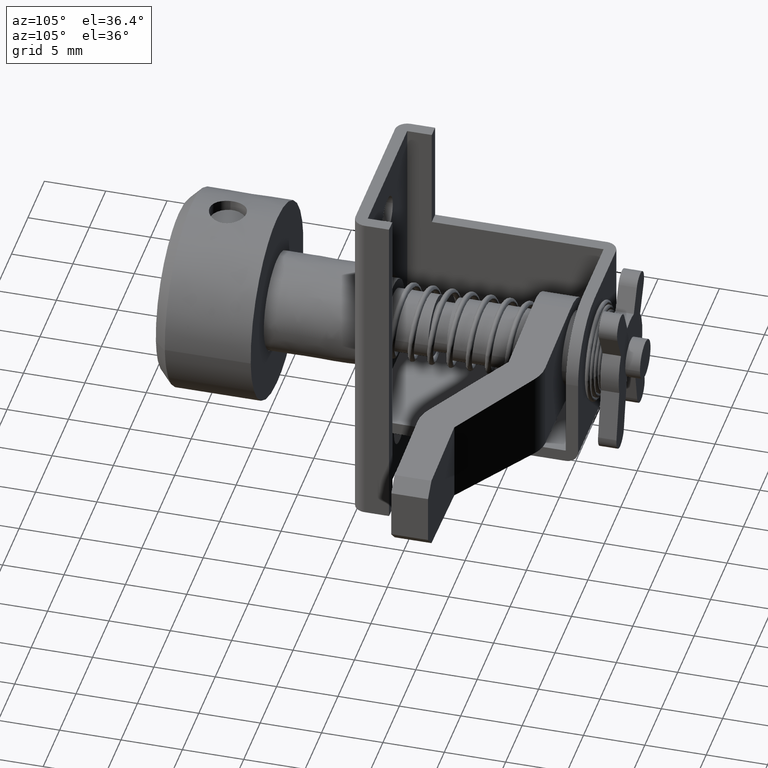
[diagram: clean part render]
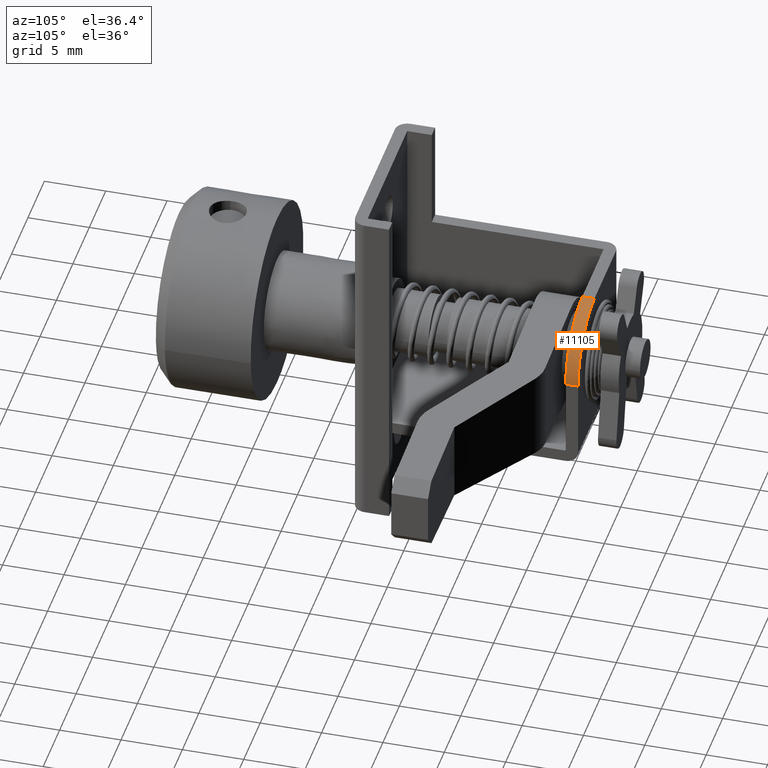
[diagram: same view with one face highlighted and labeled with its STEP entity id]
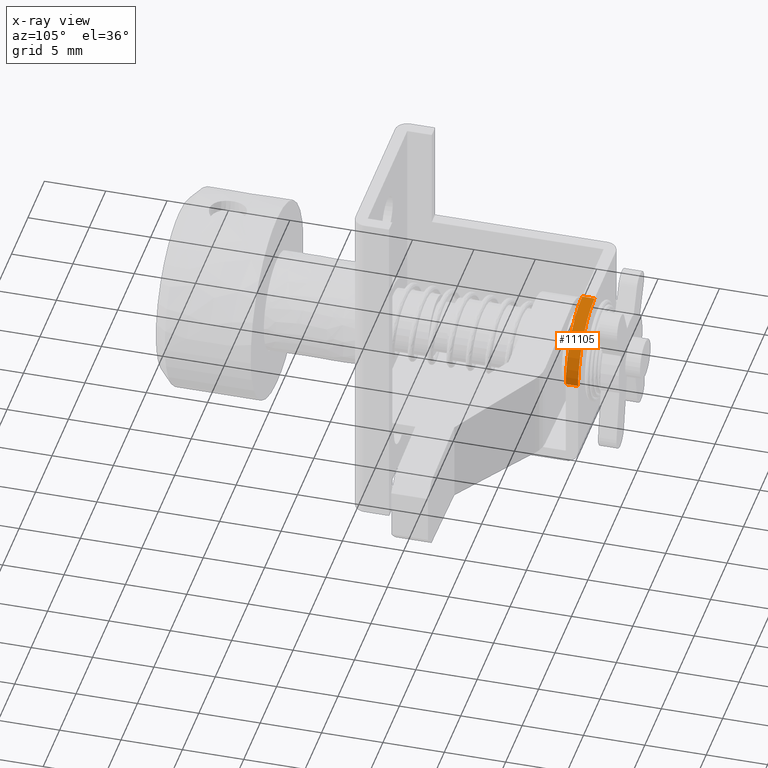
[diagram: x-ray of the same camera — body ghosted, the highlighted face saturated]
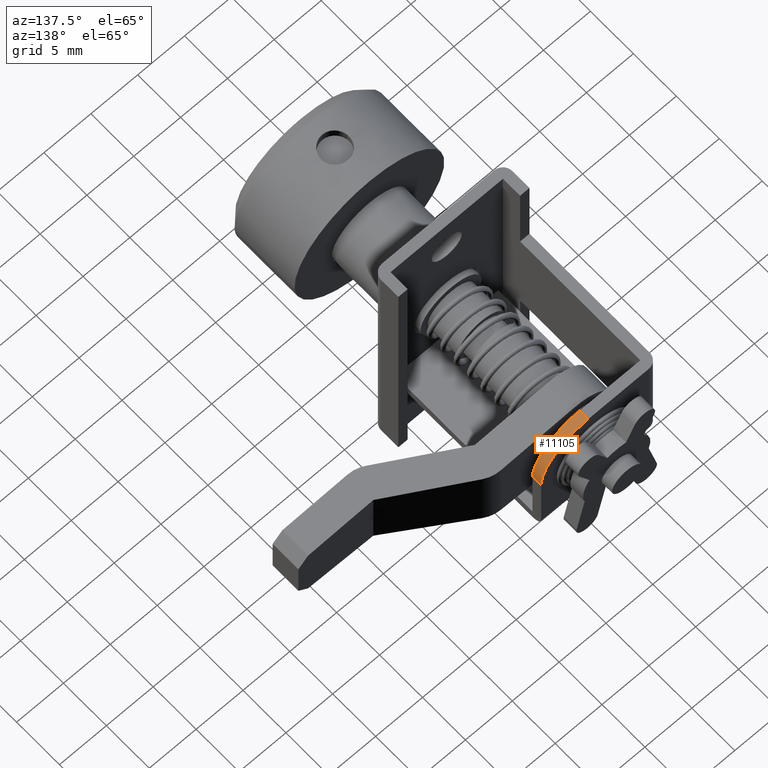
[diagram: same view with one face highlighted and labeled with its STEP entity id]
A machine part, auxiliary view. The second image highlights one B-rep face of the part: STEP entity #11105.
The next image is the same camera in x-ray: the body ghosted, the highlighted face saturated — about 0% of this face is hidden behind the body in this view.
A second angle (auxiliary view) of the same face is appended — the face is thin or edge-on in the first view.
In plain terms, the highlighted face is a freeform B-spline surface patch.
Its self-contained STEP definition (entity closure, byte-faithful):
#11045=CARTESIAN_POINT('',(16.975000000000001,-5.498286624877784,0.369115258460633));
#11046=CARTESIAN_POINT('',(18.025625000000009,-5.498286624877784,0.369115258460633));
#11047=CARTESIAN_POINT('',(16.974999999999998,-5.642461300831309,5.874924002773597));
#11048=CARTESIAN_POINT('',(18.025624999999998,-5.642461300831309,5.874924002773597));
#11049=CARTESIAN_POINT('',(16.974999999999998,-0.148399621870079,5.487622396904047));
#11050=CARTESIAN_POINT('',(18.025625000000005,-0.148399621870079,5.487622396904047));
#11058=(BOUNDED_SURFACE()B_SPLINE_SURFACE(1,2,((#11045,#11047,#11049),(#11046,#11048,#11050)),.UNSPECIFIED.,.F.,.F.,.U.)B_SPLINE_SURFACE_WITH_KNOTS((2,2),(3,3),(0.0,1.0),(0.0,8.855711720441818),.UNSPECIFIED.)GEOMETRIC_REPRESENTATION_ITEM()RATIONAL_B_SPLINE_SURFACE(((1.0,0.670944223154768,0.996392648609106),(1.0,0.670944223154768,0.996392648609106)))REPRESENTATION_ITEM('')SURFACE());
#11059=CARTESIAN_POINT('',(18.0,-0.500000000000000,5.500000000000000));
#11060=VERTEX_POINT('',#11059);
#11061=CARTESIAN_POINT('',(18.0,-5.500000000000000,0.500000000000000));
#11062=VERTEX_POINT('',#11061);
#11063=CARTESIAN_POINT('',(18.0,-0.500000000000000,5.500000000000000));
#11064=CARTESIAN_POINT('',(18.000000000000007,-5.500000000000001,5.500000000000001));
#11065=CARTESIAN_POINT('',(18.0,-5.500000000000000,0.500000000000000));
#11073=(BOUNDED_CURVE()B_SPLINE_CURVE(2,(#11063,#11064,#11065),.UNSPECIFIED.,.F.,.U.)CURVE()GEOMETRIC_REPRESENTATION_ITEM()QUASI_UNIFORM_CURVE()RATIONAL_B_SPLINE_CURVE((1.0,0.707106781186548,1.0))REPRESENTATION_ITEM(''));
#11074=EDGE_CURVE('',#11060,#11062,#11073,.T.);
#11075=ORIENTED_EDGE('',*,*,#11074,.F.);
#11076=CARTESIAN_POINT('',(17.0,-0.500000000000000,5.500000000000000));
#11077=VERTEX_POINT('',#11076);
#11078=CARTESIAN_POINT('',(17.0,-0.500000000000000,5.500000000000000));
#11079=CARTESIAN_POINT('',(18.0,-0.500000000000000,5.500000000000000));
#11080=QUASI_UNIFORM_CURVE('',1,(#11078,#11079),.UNSPECIFIED.,.F.,.U.);
#11081=EDGE_CURVE('',#11077,#11060,#11080,.T.);
#11082=ORIENTED_EDGE('',*,*,#11081,.F.);
#11083=CARTESIAN_POINT('',(17.0,-5.500000000000000,0.500000000000000));
#11084=VERTEX_POINT('',#11083);
#11085=CARTESIAN_POINT('',(17.0,-0.500000000000000,5.500000000000000));
#11086=CARTESIAN_POINT('',(17.000000000000004,-5.500000000000001,5.500000000000001));
#11087=CARTESIAN_POINT('',(17.0,-5.500000000000000,0.500000000000000));
#11095=(BOUNDED_CURVE()B_SPLINE_CURVE(2,(#11085,#11086,#11087),.UNSPECIFIED.,.F.,.U.)CURVE()GEOMETRIC_REPRESENTATION_ITEM()QUASI_UNIFORM_CURVE()RATIONAL_B_SPLINE_CURVE((1.0,0.707106781186548,1.0))REPRESENTATION_ITEM(''));
#11096=EDGE_CURVE('',#11077,#11084,#11095,.T.);
#11097=ORIENTED_EDGE('',*,*,#11096,.T.);
#11098=CARTESIAN_POINT('',(17.0,-5.500000000000000,0.500000000000000));
#11099=CARTESIAN_POINT('',(18.0,-5.500000000000000,0.500000000000000));
#11100=QUASI_UNIFORM_CURVE('',1,(#11098,#11099),.UNSPECIFIED.,.F.,.U.);
#11101=EDGE_CURVE('',#11084,#11062,#11100,.T.);
#11102=ORIENTED_EDGE('',*,*,#11101,.T.);
#11103=EDGE_LOOP('',(#11075,#11082,#11097,#11102));
#11104=FACE_OUTER_BOUND('',#11103,.T.);
#11105=ADVANCED_FACE('',(#11104),#11058,.T.);